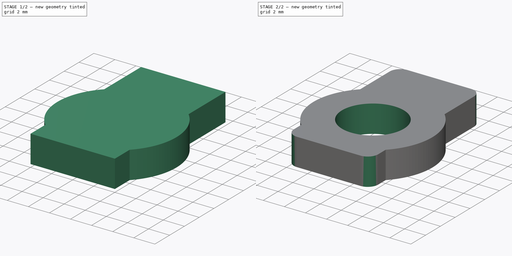
[diagram: build sequence overview — one tinted view per stage of 2, left to right]
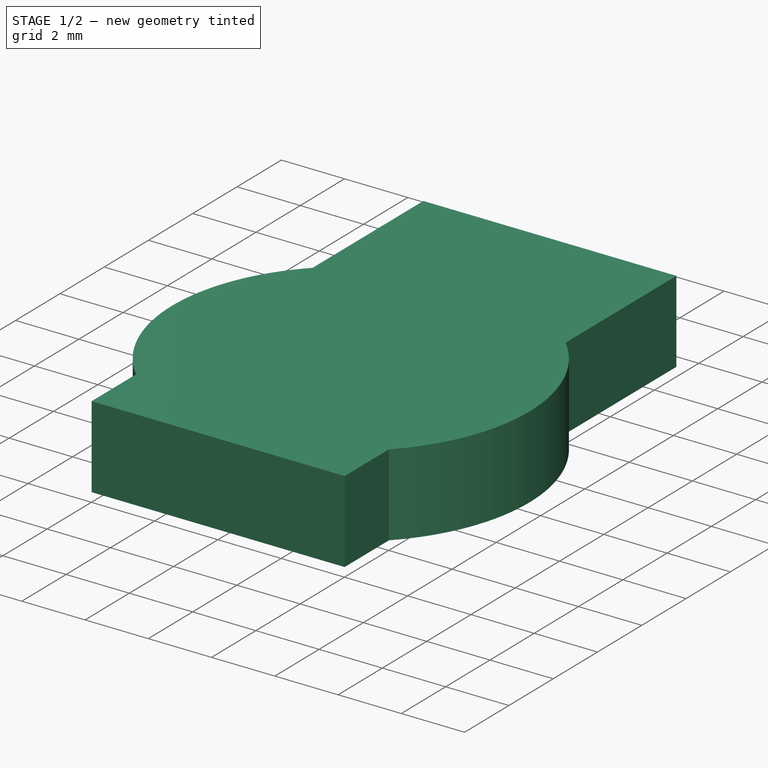
[diagram: stage 1 of 2 — iso view after this stage's code; geometry added in this stage tinted green]
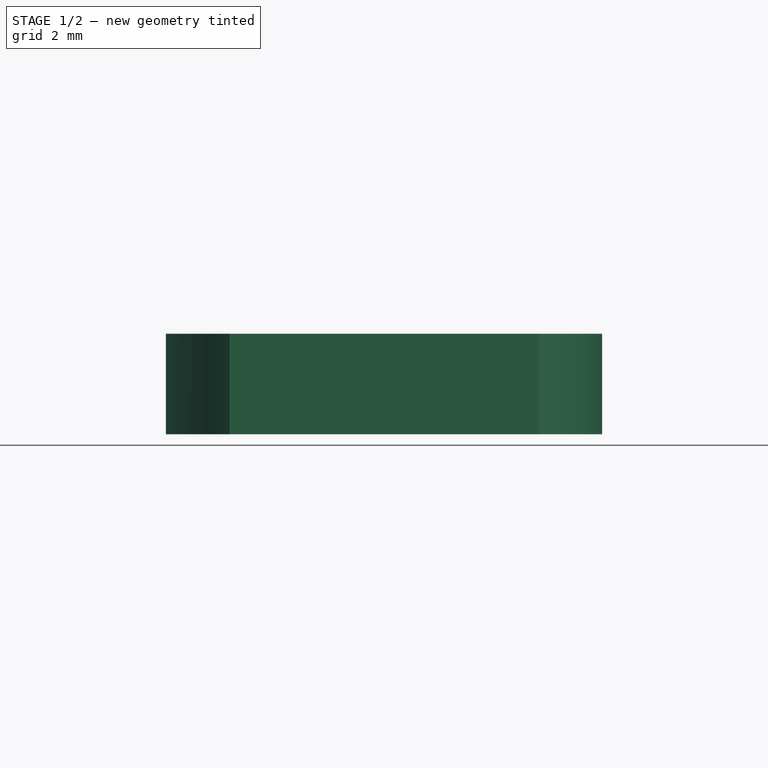
[diagram: stage 1 of 2 — front view after this stage's code; geometry added in this stage tinted green]
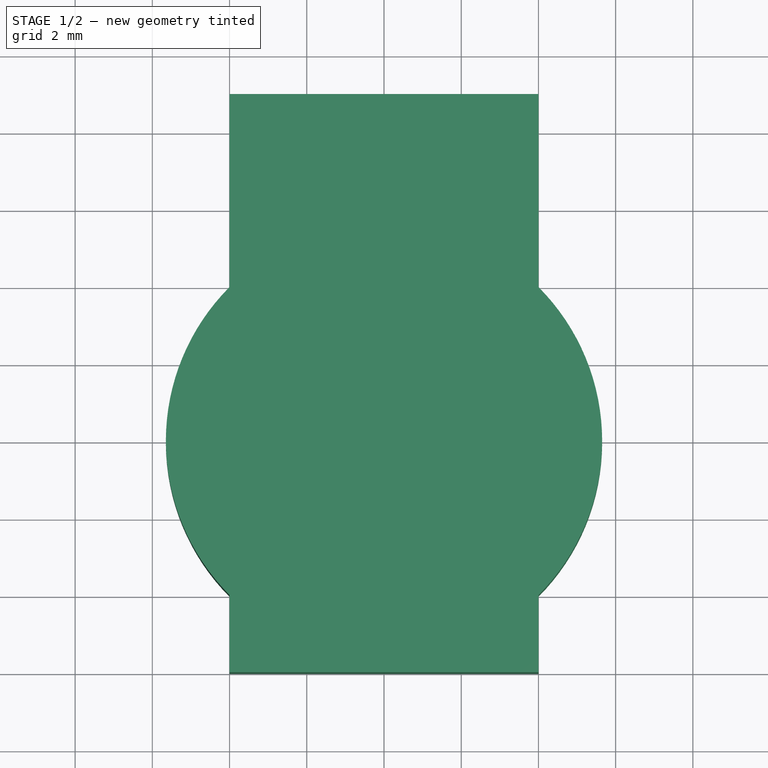
[diagram: stage 1 of 2 — top view after this stage's code; geometry added in this stage tinted green]
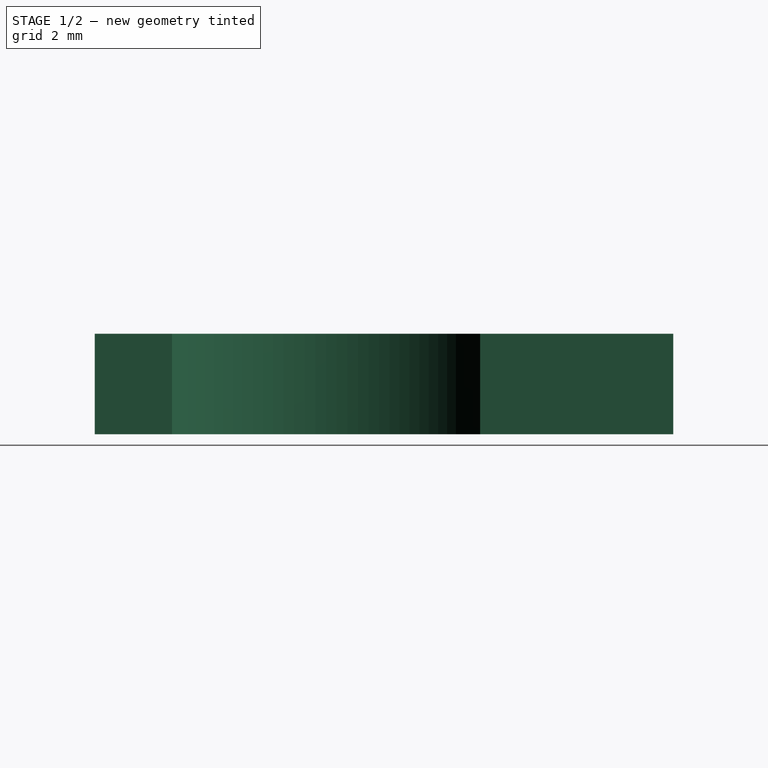
[diagram: stage 1 of 2 — right view after this stage's code; geometry added in this stage tinted green]
FCSTD DOCUMENT  (FreeCAD 1.1R20260414 (Git shallow))
Label: ServoConnector
Comment: Source: ServoQuetsch https://gitlab.com/mikeventor1/ServoQuetsch (CERN-OHL-P-2.0). Multi-file bundle: parts driven by VarSet in V.FCStd.
License: CERN Open Hardware Licence Version 2 - Permissive
LicenseURL: https://ohwr.org/cernohl
objects: Sketcher::SketchObject×2, App::Point×1, PartDesign::Pad×1, PartDesign::Mirrored×1, PartDesign::Pocket×1, PartDesign::Fillet×1, PartDesign::Body×1
note: 16 computed .brp shape members not serialized (recipe doc carries the construction recipe); baked Part::Feature solids carry a one-line shape summary decoded from their .brp

FEATURE [App::Point] Origin001  label="Ursprung"
  Role = Origin
FEATURE [Sketcher::SketchObject] Sketch
  ArcFitTolerance = 1e-06
  AttachmentSupport = -> [Origin]
  ExternalTypes = [0]
  FullyConstrained = true
  MakeInternals = false
  MapMode = 5
  _ExternalGeoVersion = 1
  sketch-geometry (6):
    g0: ArcOfCircle CenterX=0 CenterY=0 CenterZ=0 NormalX=0 NormalY=0 NormalZ=1 AngleXU=0 Radius=5.65 StartAngle=5.499 EndAngle=7.06737
    g1: LineSegment StartX=4 StartY=3.9903 StartZ=0 EndX=4 EndY=8.9903 EndZ=0
    g2: LineSegment StartX=4 StartY=8.9903 StartZ=0 EndX=0 EndY=8.9903 EndZ=0
    g3: LineSegment StartX=4 StartY=-3.9903 StartZ=0 EndX=4 EndY=-5.9903 EndZ=0
    g4: LineSegment StartX=4 StartY=-5.9903 StartZ=0 EndX=0 EndY=-5.9903 EndZ=0
    g5: LineSegment StartX=0 StartY=8.9903 StartZ=0 EndX=0 EndY=-5.9903 EndZ=0
  constraints (18):
    c: Coincident(g0,g-1)
    c: Radius(g0) = 5.65
    c: Symmetric(g0,g0,g-1)
    c: Coincident(g1,g0)
    c: Vertical(g1)
    c: DistanceX(g-1,g0) = 4
    c: DistanceY(g1,g1) = 5
    c: Coincident(g2,g1)
    c: PointOnObject(g2,g-2)
    c: Horizontal(g2)
    c: Coincident(g3,g0)
    c: Vertical(g3)
    c: Coincident(g4,g3)
    c: PointOnObject(g4,g-2)
    c: Horizontal(g4)
    c: Coincident(g5,g2)
    c: Coincident(g5,g4)
    c: DistanceY(g3,g3) = 2
FEATURE [PartDesign::Pad] Pad
  Direction = (0,0,1)
  Length = 2.6
  Length2 = 10
  Profile = -> Sketch
  ReferenceAxis = -> Sketch [N_Axis]
  SideType = 0
  Suppressed = false
  Type = 0
  Type2 = 0
FEATURE [PartDesign::Mirrored] Mirrored
  BaseFeature = -> Pad
  MirrorPlane = -> Sketch [V_Axis]
  Originals = -> [Pad]
  Suppressed = false
  TransformMode = 0
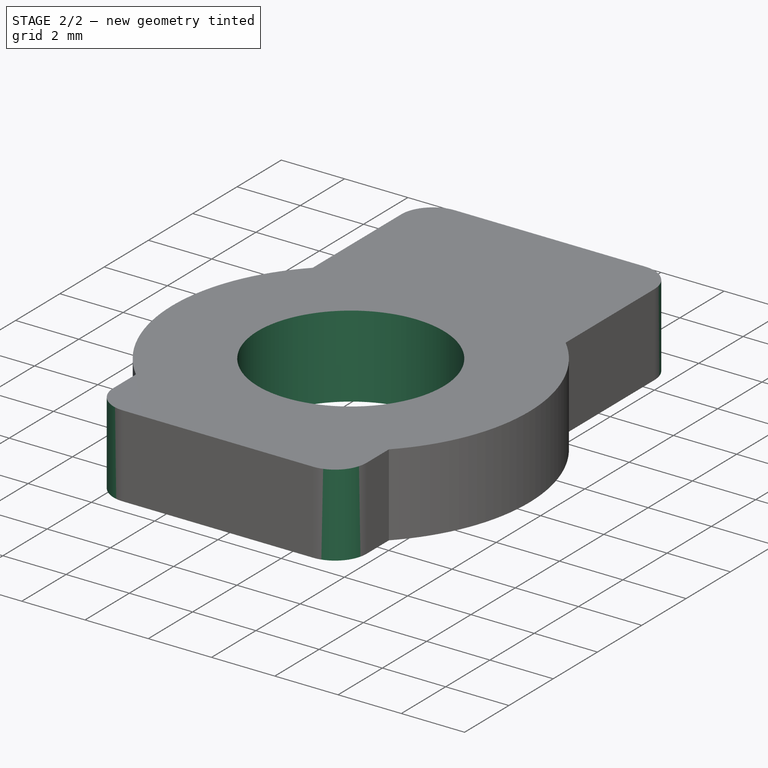
[diagram: stage 2 of 2 — iso view after this stage's code; geometry added in this stage tinted green]
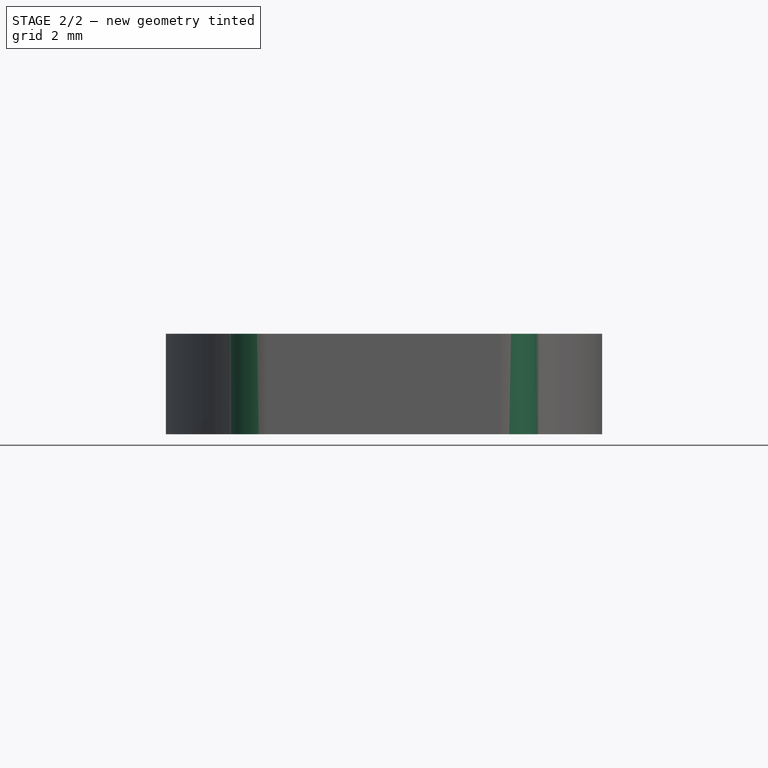
[diagram: stage 2 of 2 — front view after this stage's code; geometry added in this stage tinted green]
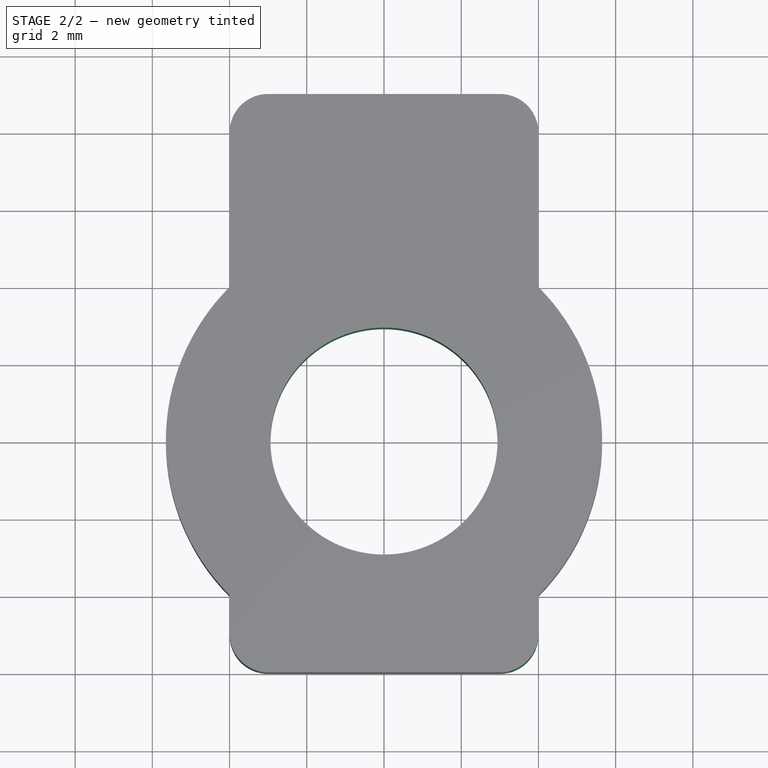
[diagram: stage 2 of 2 — top view after this stage's code; geometry added in this stage tinted green]
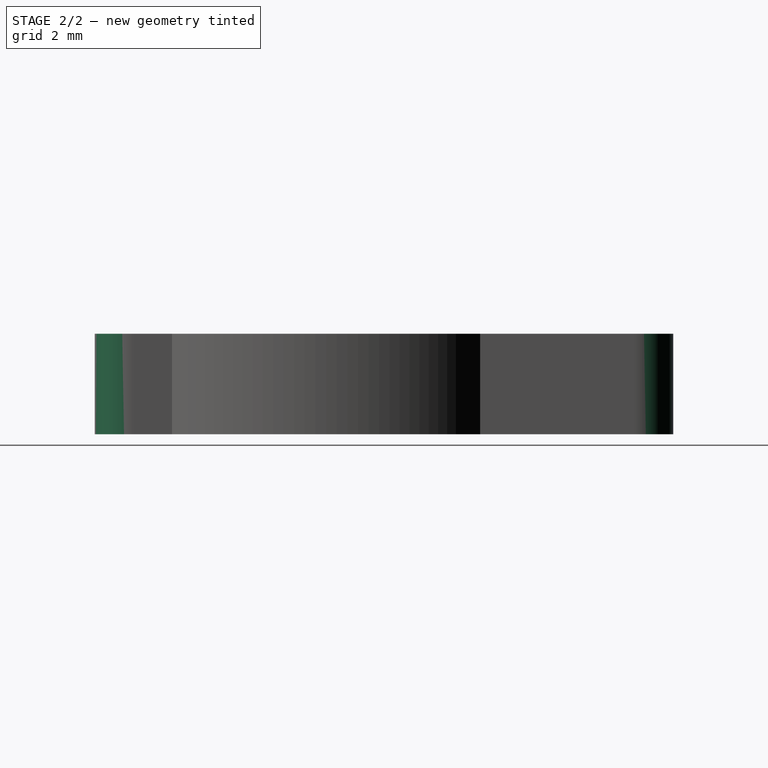
[diagram: stage 2 of 2 — right view after this stage's code; geometry added in this stage tinted green]
FEATURE [Sketcher::SketchObject] Sketch001
  ArcFitTolerance = 1e-06
  AttachmentSupport = -> [Origin]
  ExternalTypes = [0]
  FullyConstrained = true
  MakeInternals = false
  MapMode = 5
  _ExternalGeoVersion = 1
  sketch-geometry (1):
    g0: Circle CenterX=0 CenterY=0 CenterZ=0 NormalX=0 NormalY=0 NormalZ=1 AngleXU=0 Radius=2.94
  constraints (2):
    c: Coincident(g0,g-1)
    c: Diameter(g0) = 5.88
FEATURE [PartDesign::Pocket] Pocket
  BaseFeature = -> Mirrored
  Direction = (0,0,-1)
  Length = 5
  Length2 = 5
  Profile = -> Sketch001
  ReferenceAxis = -> Sketch001 [N_Axis]
  Reversed = true
  SideType = 0
  Suppressed = false
  Type = 1
  Type2 = 0
FEATURE [PartDesign::Fillet] Fillet
  Base = -> Pocket [Edge39,Edge38,Edge5,Edge8]
  BaseFeature = -> Pocket
  Radius = 1
  SupportTransform = false
  Suppressed = false
  UseAllEdges = false
FEATURE [PartDesign::Body] Body  label="ServoConnector"
  AllowCompound = false
  Group = -> [Sketch,Pad,Mirrored,Sketch001,Pocket,Fillet]
  Origin = -> Origin
  Tip = -> Fillet
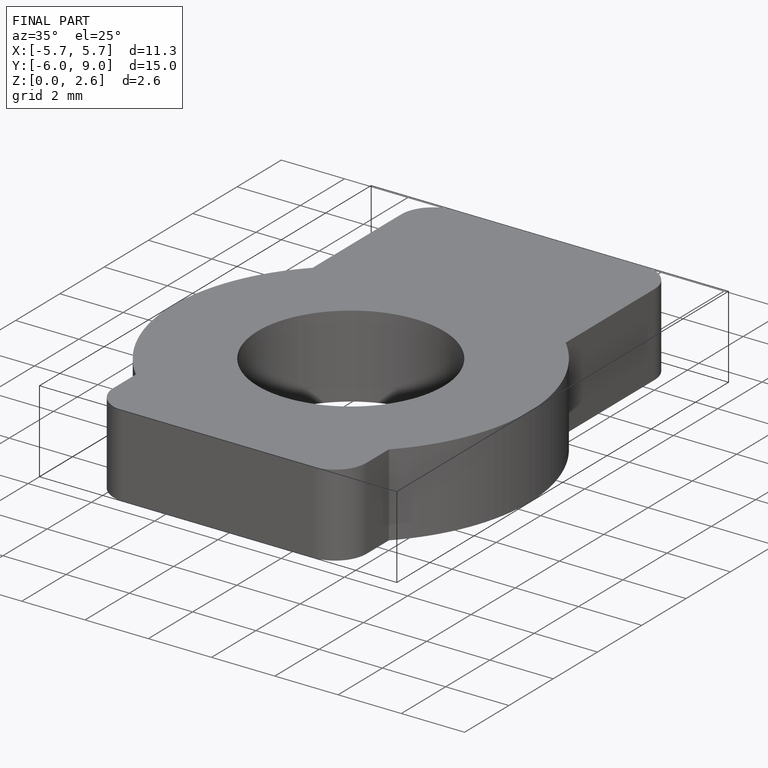
[diagram: finished part — iso view with bounding-box wireframe]
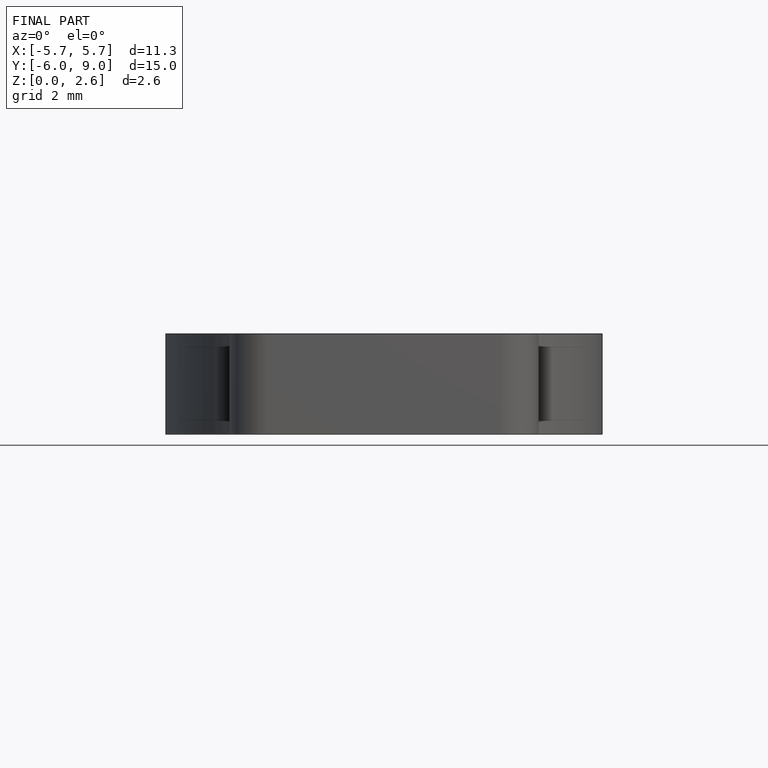
[diagram: finished part — front view with bounding-box wireframe]
